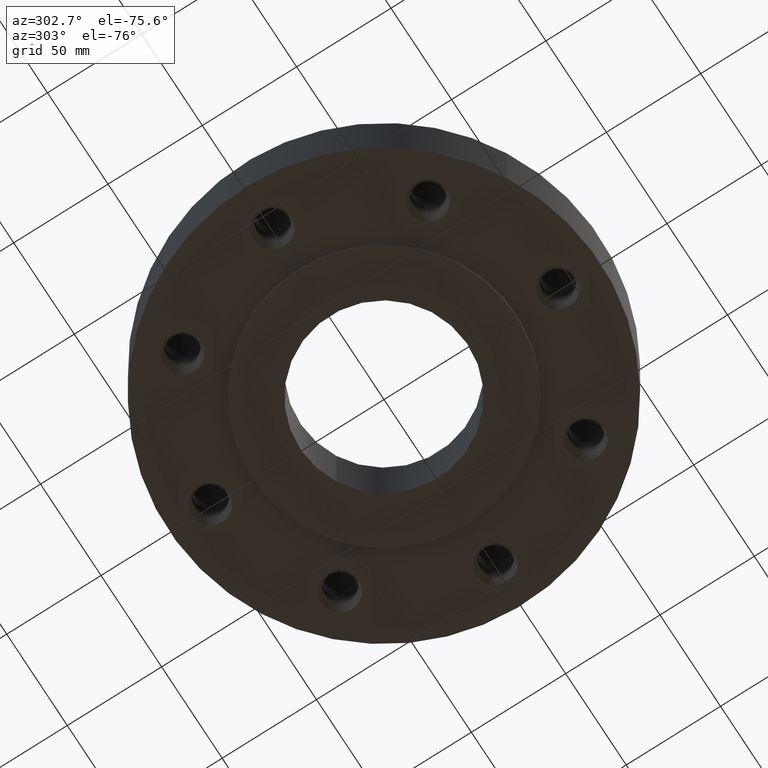
[diagram: clean part render]
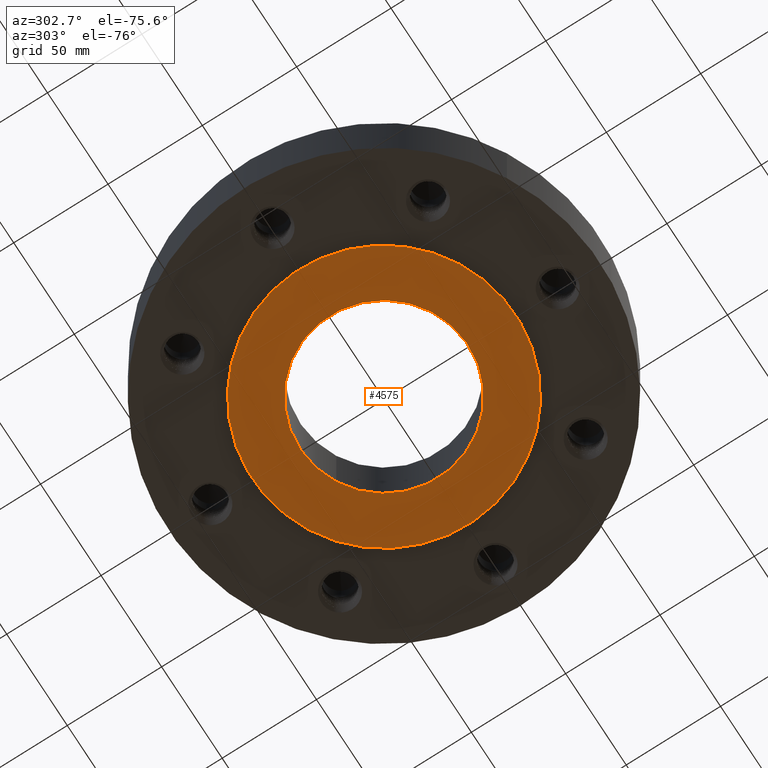
[diagram: same view with one face highlighted and labeled with its STEP entity id]
A machine part, auxiliary view. The second image highlights one B-rep face of the part: STEP entity #4575.
In plain terms, the highlighted planar face has unit normal (0, 0, -1).
Its self-contained STEP definition (entity closure, byte-faithful):
#3500=AXIS2_PLACEMENT_3D('Circle Axis2P3D',#3498,#3499,$) ;
#3526=AXIS2_PLACEMENT_3D('Circle Axis2P3D',#3524,#3525,$) ;
#4551=AXIS2_PLACEMENT_3D('Plane Axis2P3D',#4548,#4549,#4550) ;
#4559=AXIS2_PLACEMENT_3D('Circle Axis2P3D',#4557,#4558,$) ;
#4568=AXIS2_PLACEMENT_3D('Circle Axis2P3D',#4566,#4567,$) ;
#3498=CARTESIAN_POINT('Axis2P3D Location',(0.,0.,-0.0625000000003)) ;
#3502=CARTESIAN_POINT('Vertex',(1.31842023117,2.41335204521,-0.0625000000003)) ;
#3504=CARTESIAN_POINT('Vertex',(-1.31842023117,-2.41335204521,-0.0625000000003)) ;
#3524=CARTESIAN_POINT('Axis2P3D Location',(0.,0.,-0.0625000000003)) ;
#4548=CARTESIAN_POINT('Axis2P3D Location',(0.,2.75000000001,-0.0625000000003)) ;
#4557=CARTESIAN_POINT('Axis2P3D Location',(0.,0.,-0.0625000000003)) ;
#4561=CARTESIAN_POINT('Vertex',(0.838994692561,1.53576948331,-0.0625000000002)) ;
#4563=CARTESIAN_POINT('Vertex',(-0.838994692561,-1.53576948331,-0.0625000000002)) ;
#4566=CARTESIAN_POINT('Axis2P3D Location',(0.,0.,-0.0625000000003)) ;
#3499=DIRECTION('Axis2P3D Direction',(0.,0.,-0.0393700787402)) ;
#3525=DIRECTION('Axis2P3D Direction',(0.,0.,-0.0393700787402)) ;
#4549=DIRECTION('Axis2P3D Direction',(0.,0.,-0.0393700787402)) ;
#4550=DIRECTION('Axis2P3D XDirection',(0.0393700787402,0.,0.)) ;
#4558=DIRECTION('Axis2P3D Direction',(0.,0.,-0.0393700787402)) ;
#4567=DIRECTION('Axis2P3D Direction',(0.,0.,-0.0393700787402)) ;
#4554=ORIENTED_EDGE('',*,*,#3528,.T.) ;
#4555=ORIENTED_EDGE('',*,*,#3506,.T.) ;
#4572=ORIENTED_EDGE('',*,*,#4565,.F.) ;
#4573=ORIENTED_EDGE('',*,*,#4570,.F.) ;
#4574=FACE_BOUND('',#4571,.T.) ;
#4575=ADVANCED_FACE('PartBody',(#4556,#4574),#4552,.T.) ;
#3501=CIRCLE('generated circle',#3500,2.75000000001) ;
#3527=CIRCLE('generated circle',#3526,2.75000000001) ;
#4560=CIRCLE('generated circle',#4559,1.75000000001) ;
#4569=CIRCLE('generated circle',#4568,1.75000000001) ;
#3506=EDGE_CURVE('',#3503,#3505,#3501,.T.) ;
#3528=EDGE_CURVE('',#3505,#3503,#3527,.T.) ;
#4565=EDGE_CURVE('',#4562,#4564,#4560,.T.) ;
#4570=EDGE_CURVE('',#4564,#4562,#4569,.T.) ;
#4553=EDGE_LOOP('',(#4554,#4555)) ;
#4571=EDGE_LOOP('',(#4572,#4573)) ;
#4556=FACE_OUTER_BOUND('',#4553,.T.) ;
#4552=PLANE('',#4551) ;
#3503=VERTEX_POINT('',#3502) ;
#3505=VERTEX_POINT('',#3504) ;
#4562=VERTEX_POINT('',#4561) ;
#4564=VERTEX_POINT('',#4563) ;